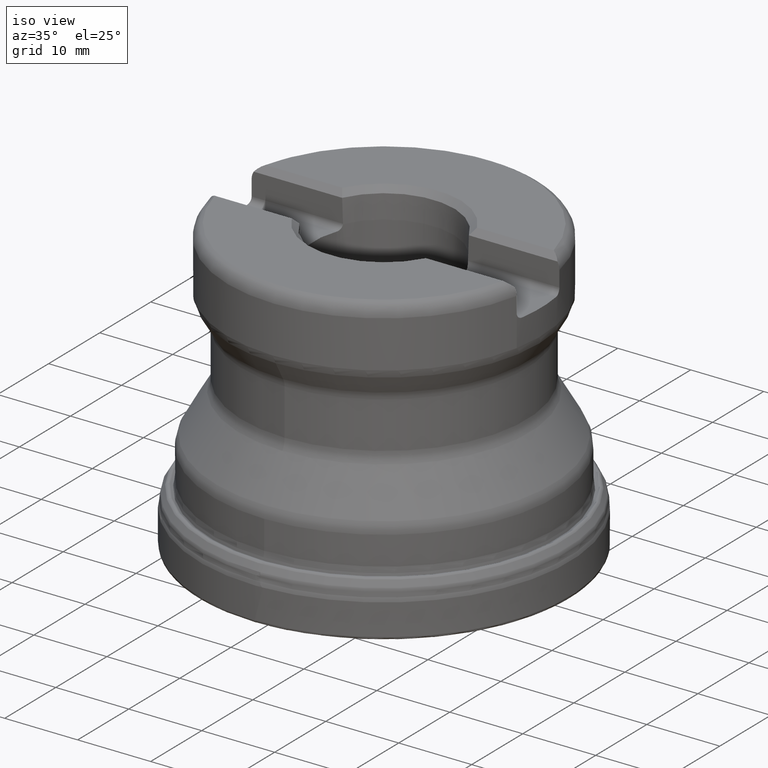
[diagram: clean part render]
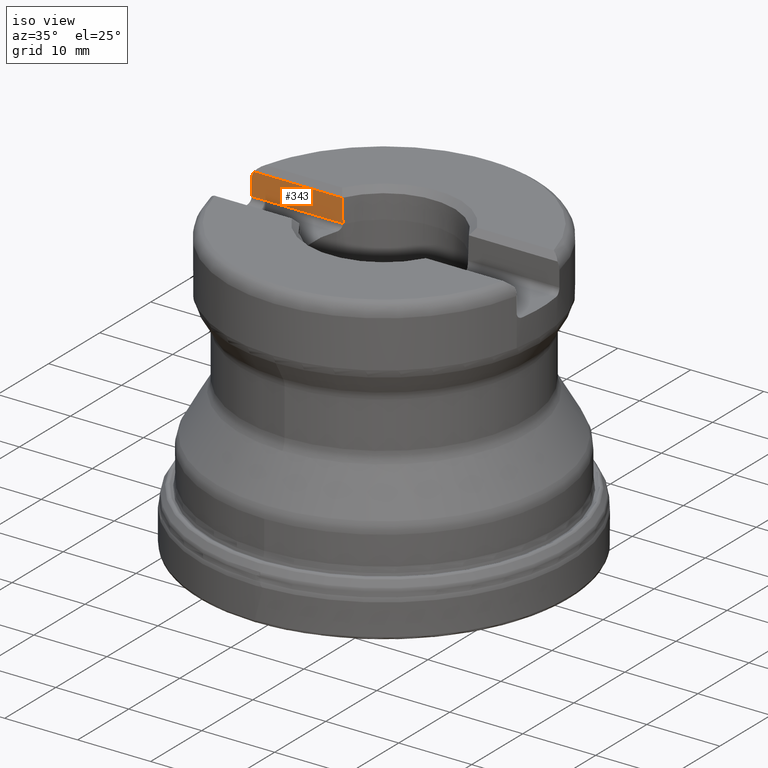
[diagram: same view with one face highlighted and labeled with its STEP entity id]
A machine part, iso view. The second image highlights one B-rep face of the part: STEP entity #343.
In plain terms, the highlighted planar face has unit normal (0, 1, -0).
Its self-contained STEP definition (entity closure, byte-faithful):
#273=PLANE('',#1163);
#293=LINE('',#1875,#318);
#294=LINE('',#1876,#319);
#295=LINE('',#1878,#320);
#318=VECTOR('',#1298,1.);
#319=VECTOR('',#1299,1.);
#320=VECTOR('',#1300,1.);
#343=ADVANCED_FACE('',(#434),#273,.F.);
#434=FACE_OUTER_BOUND('',#458,.T.);
#458=EDGE_LOOP('',(#599,#600,#601,#602,#603));
#599=ORIENTED_EDGE('',*,*,#927,.F.);
#600=ORIENTED_EDGE('',*,*,#928,.T.);
#601=ORIENTED_EDGE('',*,*,#920,.T.);
#602=ORIENTED_EDGE('',*,*,#929,.T.);
#603=ORIENTED_EDGE('',*,*,#930,.T.);
#825=VERTEX_POINT('',#1827);
#826=VERTEX_POINT('',#1838);
#831=VERTEX_POINT('',#1873);
#832=VERTEX_POINT('',#1874);
#833=VERTEX_POINT('',#1877);
#920=EDGE_CURVE('',#826,#825,#1117,.T.);
#927=EDGE_CURVE('',#831,#832,#1121,.T.);
#928=EDGE_CURVE('',#831,#826,#293,.T.);
#929=EDGE_CURVE('',#825,#833,#294,.T.);
#930=EDGE_CURVE('',#833,#832,#295,.T.);
#1117=B_SPLINE_CURVE_WITH_KNOTS('',3,(#1828,#1829,#1830,#1831,#1832,#1833,
#1834,#1835,#1836,#1837),.UNSPECIFIED.,.F.,.F.,(4,3,3,4),(0.,0.0563046054083465,
0.46334795388712,1.),.UNSPECIFIED.);
#1121=B_SPLINE_CURVE_WITH_KNOTS('',3,(#1866,#1867,#1868,#1869,#1870,#1871,
#1872),.UNSPECIFIED.,.F.,.F.,(4,3,4),(0.,0.359001715786988,1.),
 .UNSPECIFIED.);
#1163=AXIS2_PLACEMENT_3D('',#1879,#1301,#1302);
#1298=DIRECTION('',(-1.,0.,0.));
#1299=DIRECTION('',(0.,-1.17145536458252E-15,-1.));
#1300=DIRECTION('',(1.,0.,0.));
#1301=DIRECTION('',(0.,1.,-1.0475465448699E-15));
#1302=DIRECTION('',(0.,1.04777297948999E-15,1.));
#1827=CARTESIAN_POINT('',(-21.0918627961117,4.17500000000005,38.078));
#1828=CARTESIAN_POINT('',(-20.8186471274423,4.17500000000005,39.078));
#1829=CARTESIAN_POINT('',(-20.8286859559455,4.17500000000005,39.0609516747558));
#1830=CARTESIAN_POINT('',(-20.8384714760241,4.17500000000005,39.0437516275007));
#1831=CARTESIAN_POINT('',(-20.8479967816086,4.17500000000005,39.026411153895));
#1832=CARTESIAN_POINT('',(-20.9166264184091,4.17500000000005,38.9014733873379));
#1833=CARTESIAN_POINT('',(-20.9720442366999,4.17500000000005,38.7683280528588));
#1834=CARTESIAN_POINT('',(-21.012208593663,4.17500000000005,38.6315570874116));
#1835=CARTESIAN_POINT('',(-21.06473480305,4.17500000000005,38.4526905272991));
#1836=CARTESIAN_POINT('',(-21.0918627961117,4.17500000000005,38.2644195510107));
#1837=CARTESIAN_POINT('',(-21.0918627961117,4.17500000000005,38.078));
#1838=CARTESIAN_POINT('',(-20.8186471274423,4.17500000000005,39.078));
#1866=CARTESIAN_POINT('',(-8.6854048483689,4.17500000000005,39.078));
#1867=CARTESIAN_POINT('',(-8.67079953540332,4.17500000000005,38.7010474406744));
#1868=CARTESIAN_POINT('',(-8.65618731825944,4.17500000000005,38.3240951487913));
#1869=CARTESIAN_POINT('',(-8.64156809137656,4.17500000000005,37.9471431288282));
#1870=CARTESIAN_POINT('',(-8.61546543257466,4.17500000000004,37.2740945442065));
#1871=CARTESIAN_POINT('',(-8.58934042794329,4.17500000000004,36.6010468258247));
#1872=CARTESIAN_POINT('',(-8.56319245851635,4.17500000000004,35.928));
#1873=CARTESIAN_POINT('',(-8.6854048483689,4.17500000000005,39.078));
#1874=CARTESIAN_POINT('',(-8.56319245851635,4.17500000000004,35.928));
#1875=CARTESIAN_POINT('',(-19.9405016457739,4.17500000000005,39.078));
#1876=CARTESIAN_POINT('',(-21.0918627961117,4.17500000000001,-4.37350682483182E-15));
#1877=CARTESIAN_POINT('',(-21.0918627961117,4.17500000000004,35.928));
#1878=CARTESIAN_POINT('',(30.,4.17500000000004,35.928));
#1879=CARTESIAN_POINT('',(30.,4.17500000000005,42.128));